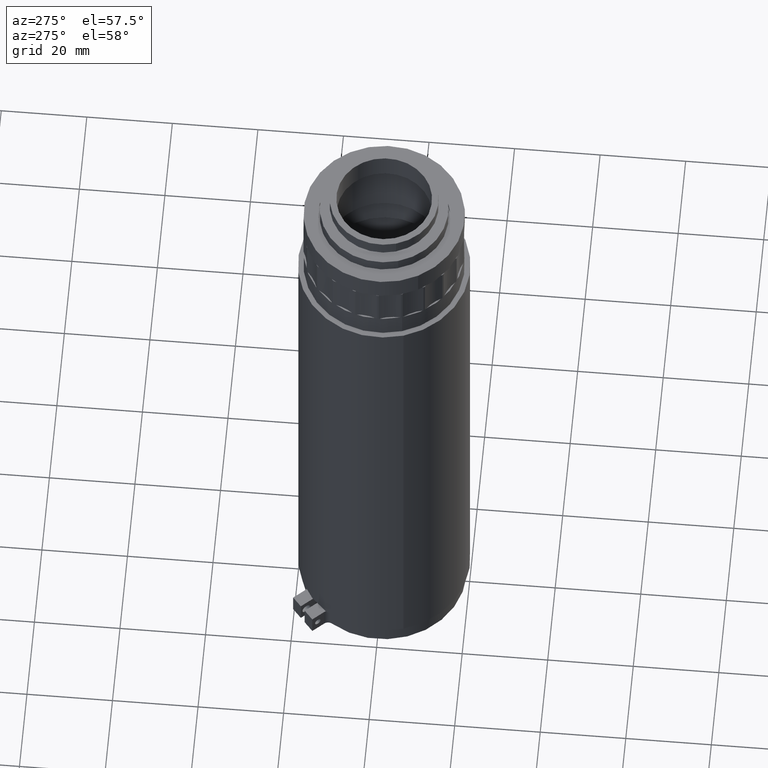
[diagram: clean part render]
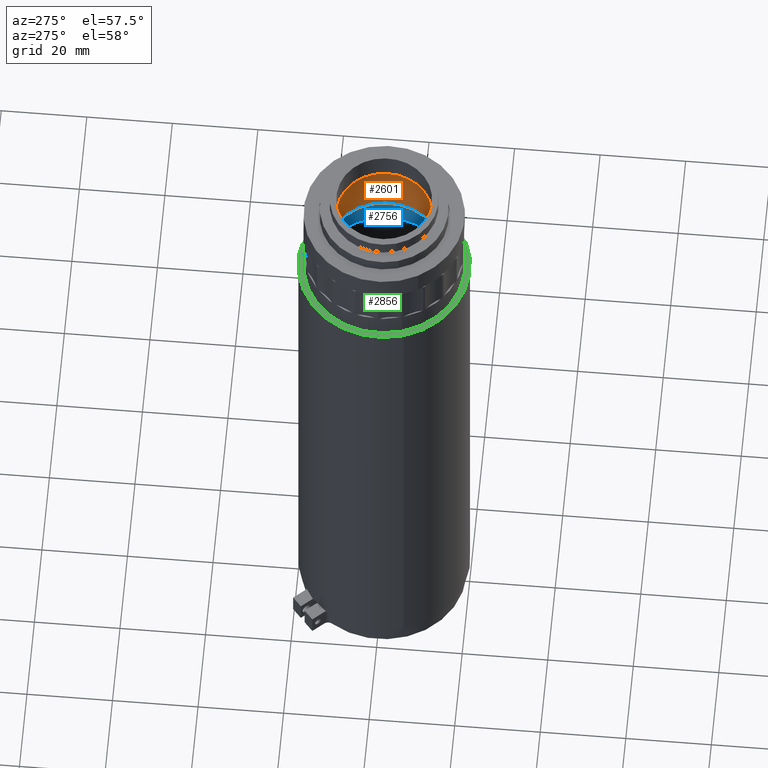
[diagram: same view with three faces highlighted in distinct colors, each labeled with its STEP entity id]
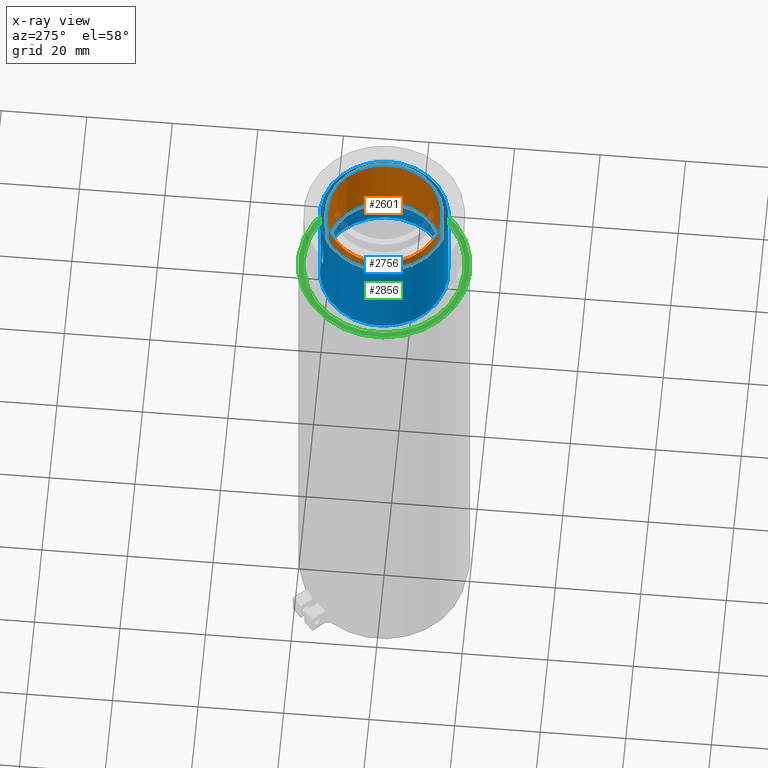
[diagram: x-ray of the same camera — body ghosted, the three highlighted faces saturated]
A machine part, auxiliary view with three faces highlighted in distinct colors.
The next image is the same camera in x-ray (body ghosted, the three faces saturated) — at least one of them is partly hidden behind the body in this view.
Their STEP definitions:

[orange] entity #2601 — the highlighted cylindrical surface (bore or boss wall) has radius 13.5 mm, axis along (-0, -0, -1).
#111 = DIRECTION ( 'NONE',  ( -0.9538784807491921258, -0.3001930111838268522, 0.000000000000000000 ) ) ;
#135 = EDGE_LOOP ( 'NONE', ( #188 ) ) ;
#141 = CIRCLE ( 'NONE', #3009, 13.50000000000000178 ) ;
#182 = CARTESIAN_POINT ( 'NONE',  ( -4.617328216885215220, 12.66830743998387732, 334.0175779698986389 ) ) ;
#188 = ORIENTED_EDGE ( 'NONE', *, *, #2972, .F. ) ;
#206 = CARTESIAN_POINT ( 'NONE',  ( -3.728165001072351270, 12.95886490819899173, 333.2967141837277723 ) ) ;
#326 = CARTESIAN_POINT ( 'NONE',  ( 3.806879631704331857, -12.96943754340228949, 332.8560086053175837 ) ) ;
#353 = CARTESIAN_POINT ( 'NONE',  ( 4.318867868283898126, -12.80835938454816691, 332.8553742682515235 ) ) ;
#375 = CARTESIAN_POINT ( 'NONE',  ( 4.553804113957438560, -12.72685174855670986, 334.7496313662290390 ) ) ;
#396 = CYLINDRICAL_SURFACE ( 'NONE', #720, 13.50000000000000178 ) ;
#398 = CARTESIAN_POINT ( 'NONE',  ( 3.937553606003119988, -12.93054685609240728, 334.8790489789077469 ) ) ;
#423 = CIRCLE ( 'NONE', #4826, 13.50000000000000178 ) ;
#516 = CARTESIAN_POINT ( 'NONE',  ( -4.351309066032870376, 12.76275659742168500, 334.4111985816682022 ) ) ;
#536 = CARTESIAN_POINT ( 'NONE',  ( -3.561496191275754342, 13.00537847015142745, 333.4696525701223777 ) ) ;
#537 = CARTESIAN_POINT ( 'NONE',  ( 0.01183030213290377566, -0.01324913266420750350, 344.6539564219371528 ) ) ;
#560 = CARTESIAN_POINT ( 'NONE',  ( 5.030463390938312074, -12.54573978376575383, 333.8539564219370277 ) ) ;
#632 = EDGE_LOOP ( 'NONE', ( #882 ) ) ;
#668 = CARTESIAN_POINT ( 'NONE',  ( -4.632603999458059896, 12.66268199756071411, 333.8539564219370845 ) ) ;
#704 = CARTESIAN_POINT ( 'NONE',  ( 3.075012782434137115, -13.16113539215002071, 333.7184827245309862 ) ) ;
#720 = AXIS2_PLACEMENT_3D ( 'NONE', #3467, #4236, #3062 ) ;
#735 = CARTESIAN_POINT ( 'NONE',  ( 3.569485251307495943, -13.03662460951496982, 332.9582811440278078 ) ) ;
#784 = CARTESIAN_POINT ( 'NONE',  ( 4.553498240636089989, -12.72696893807419727, 332.9579716130402858 ) ) ;
#882 = ORIENTED_EDGE ( 'NONE', *, *, #3643, .T. ) ;
#976 = CARTESIAN_POINT ( 'NONE',  ( -4.196707108164808631, 12.81503200699132528, 334.4788450090070455 ) ) ;
#1001 = CARTESIAN_POINT ( 'NONE',  ( -4.118132460278009610, 12.83976816314461900, 333.2289009338048800 ) ) ;
#1046 = VERTEX_POINT ( 'NONE', #668 ) ;
#1093 = CARTESIAN_POINT ( 'NONE',  ( 3.569801894400513209, -13.03654584043292708, 334.7499408926724982 ) ) ;
#1148 = CARTESIAN_POINT ( 'NONE',  ( 4.661301458374867757, -12.68768708409983148, 334.6732688906452609 ) ) ;
#1163 = VERTEX_POINT ( 'NONE', #2754 ) ;
#1321 = CARTESIAN_POINT ( 'NONE',  ( -3.673606730363610406, 12.97408950975072095, 334.3545063065188856 ) ) ;
#1419 = CARTESIAN_POINT ( 'NONE',  ( -12.86552918798119194, -4.065854783645871606, 328.1539564219370959 ) ) ;
#1467 = CARTESIAN_POINT ( 'NONE',  ( -12.86552918798119016, -4.065854783645870718, 344.6539564219371528 ) ) ;
#1502 = ORIENTED_EDGE ( 'NONE', *, *, #2350, .T. ) ;
#1561 = CARTESIAN_POINT ( 'NONE',  ( 3.808756645766784299, -12.96889536629462469, 334.8525385074775613 ) ) ;
#1696 = ORIENTED_EDGE ( 'NONE', *, *, #4854, .T. ) ;
#1705 = CARTESIAN_POINT ( 'NONE',  ( 0.01183030213290331770, -0.01324913266420818872, 328.1539564219370959 ) ) ;
#1776 = CARTESIAN_POINT ( 'NONE',  ( -3.884840583044122830, 12.91317883927217913, 333.2290678348023789 ) ) ;
#1851 = VERTEX_POINT ( 'NONE', #1419 ) ;
#1859 = B_SPLINE_CURVE_WITH_KNOTS ( 'NONE', 3,
 ( #2504, #4891, #182, #4812, #2843, #516, #976, #2536, #4412, #4108, #1321, #3708, #4435, #2480, #4511, #4049, #536, #206, #1776, #1001, #3057, #3081, #3816, #4614, #3848, #4637 ),
 .UNSPECIFIED., .T., .F.,
 ( 4, 2, 2, 2, 2, 2, 2, 2, 2, 2, 2, 2, 4 ),
 ( 0.000000000000000000, 0.0002442361452107170375, 0.0004884722904214340751, 0.0009769445808428681502, 0.001221180726053585188, 0.001465416871264302225, 0.001953889161685737168, 0.002198125306896454856, 0.002442361452107171677, 0.002930833742528725881, 0.003175069887739502116, 0.003419306032950277484, 0.003907778323371946180 ),
 .UNSPECIFIED. ) ;
#1896 = CARTESIAN_POINT ( 'NONE',  ( 4.838567278811211736, -12.62124538803659846, 334.4842407930610193 ) ) ;
#1920 = B_SPLINE_CURVE_WITH_KNOTS ( 'NONE', 3,
 ( #2371, #4214, #3469, #3088, #1896, #1148, #375, #4598, #1946, #398, #1561, #1093, #2723, #2643, #4239, #3490, #2668, #704, #4671, #2270, #3826, #4292, #735, #326, #3857, #3445, #353, #784, #1973, #3520, #3300, #2499, #4506, #560 ),
 .UNSPECIFIED., .T., .F.,
 ( 4, 2, 2, 2, 2, 2, 2, 2, 2, 2, 2, 2, 2, 2, 2, 2, 4 ),
 ( 0.000000000000000000, 0.0004006355939602346088, 0.0008012711879204692175, 0.001201906781880703826, 0.001602542375840938435, 0.002003177969801173044, 0.002403813563761407653, 0.002804449157721642261, 0.003205084751681876870, 0.003605720345642111479, 0.004006355939602346088, 0.004406991533562580263, 0.004807627127522815305, 0.005208262721483050348, 0.005608898315443284523, 0.006009533909403518698, 0.006410169503363753740 ),
 .UNSPECIFIED. ) ;
#1922 = FACE_OUTER_BOUND ( 'NONE', #135, .T. ) ;
#1946 = CARTESIAN_POINT ( 'NONE',  ( 4.192675292398174491, -12.85024329413389843, 334.8788633713473928 ) ) ;
#1973 = CARTESIAN_POINT ( 'NONE',  ( 4.659690494049882226, -12.68828712590319263, 333.0330582157678236 ) ) ;
#2270 = CARTESIAN_POINT ( 'NONE',  ( 3.201417832899234650, -13.13114497235157607, 333.3373382067687203 ) ) ;
#2350 = EDGE_CURVE ( 'NONE', #1851, #1851, #423, .T. ) ;
#2371 = CARTESIAN_POINT ( 'NONE',  ( 5.030463390938312074, -12.54573978376575383, 333.8539564219370277 ) ) ;
#2480 = CARTESIAN_POINT ( 'NONE',  ( -3.440255898521537237, 13.03792326154050940, 333.7713713993999249 ) ) ;
#2499 = CARTESIAN_POINT ( 'NONE',  ( 5.005580040463980751, -12.55578195664511831, 333.5852815793221566 ) ) ;
#2504 = CARTESIAN_POINT ( 'NONE',  ( -4.632603999458059896, 12.66268199756071233, 333.8539564219370277 ) ) ;
#2536 = CARTESIAN_POINT ( 'NONE',  ( -3.963419734595752253, 12.88845746679263371, 334.4790119101013488 ) ) ;
#2601 = ADVANCED_FACE ( 'NONE', ( #1922, #3039, #3412, #3443 ), #396, .F. ) ;
#2643 = CARTESIAN_POINT ( 'NONE',  ( 3.274859981929496122, -13.11331897258331836, 334.4836434904045745 ) ) ;
#2668 = CARTESIAN_POINT ( 'NONE',  ( 3.075012228375192613, -13.16113552123415431, 333.9894258273984065 ) ) ;
#2723 = CARTESIAN_POINT ( 'NONE',  ( 3.460595878982799078, -13.06565153597399132, 334.6748541138336464 ) ) ;
#2754 = CARTESIAN_POINT ( 'NONE',  ( 5.030463390938312074, -12.54573978376575027, 333.8539564219370845 ) ) ;
#2843 = CARTESIAN_POINT ( 'NONE',  ( -4.514576997653066748, 12.70543648522692415, 334.2382600117468314 ) ) ;
#2972 = EDGE_CURVE ( 'NONE', #3353, #3353, #141, .T. ) ;
#3009 = AXIS2_PLACEMENT_3D ( 'NONE', #537, #4512, #4535 ) ;
#3039 = FACE_BOUND ( 'NONE', #632, .T. ) ;
#3057 = CARTESIAN_POINT ( 'NONE',  ( -4.196046153214314955, 12.81443592021962097, 333.2450614042080019 ) ) ;
#3062 = DIRECTION ( 'NONE',  ( -0.9538784807491921258, -0.3001930111838268522, 0.000000000000000000 ) ) ;
#3081 = CARTESIAN_POINT ( 'NONE',  ( -4.339606987269471361, 12.76645045675662971, 333.3076019521445801 ) ) ;
#3088 = CARTESIAN_POINT ( 'NONE',  ( 4.909665578562405486, -12.59354600794787338, 334.3705734286558595 ) ) ;
#3300 = CARTESIAN_POINT ( 'NONE',  ( 4.909491113298487974, -12.59361417778484160, 333.3370019662631876 ) ) ;
#3353 = VERTEX_POINT ( 'NONE', #1467 ) ;
#3412 = FACE_OUTER_BOUND ( 'NONE', #4191, .T. ) ;
#3443 = FACE_BOUND ( 'NONE', #4991, .T. ) ;
#3445 = CARTESIAN_POINT ( 'NONE',  ( 4.191322351026794735, -12.85068384915839168, 332.8288638650888061 ) ) ;
#3467 = CARTESIAN_POINT ( 'NONE',  ( 0.01183030213290291698, -0.01324913266420879240, 313.6820463095775153 ) ) ;
#3469 = CARTESIAN_POINT ( 'NONE',  ( 5.005641917239412209, -12.55575707239207084, 334.1223577611976907 ) ) ;
#3490 = CARTESIAN_POINT ( 'NONE',  ( 3.101161726885779846, -13.15511724278570327, 334.1226295679818463 ) ) ;
#3520 = CARTESIAN_POINT ( 'NONE',  ( 4.839249736500669030, -12.62099334399506567, 333.2242683532816159 ) ) ;
#3643 = EDGE_CURVE ( 'NONE', #1046, #1046, #1859, .T. ) ;
#3708 = CARTESIAN_POINT ( 'NONE',  ( -3.504841991304952220, 13.02119218691712632, 334.1796377944784808 ) ) ;
#3816 = CARTESIAN_POINT ( 'NONE',  ( -4.404752910471795957, 12.74399209959479862, 333.3534063993938048 ) ) ;
#3826 = CARTESIAN_POINT ( 'NONE',  ( 3.275565321986183331, -13.11313436618642747, 333.2236710743180765 ) ) ;
#3848 = CARTESIAN_POINT ( 'NONE',  ( -4.632603999458057231, 12.66268199756071233, 333.6887862809578564 ) ) ;
#3857 = CARTESIAN_POINT ( 'NONE',  ( 3.936192540525948580, -12.93096042022951586, 332.8290494724046198 ) ) ;
#4049 = CARTESIAN_POINT ( 'NONE',  ( -3.516647371869430660, 13.01751565707463421, 333.5389733625381723 ) ) ;
#4108 = CARTESIAN_POINT ( 'NONE',  ( -3.739873110486010788, 12.95519138996778707, 334.4003108010645064 ) ) ;
#4191 = EDGE_LOOP ( 'NONE', ( #1502 ) ) ;
#4214 = CARTESIAN_POINT ( 'NONE',  ( 5.030463390938308521, -12.54573978376575027, 333.9894282006926005 ) ) ;
#4236 = DIRECTION ( 'NONE',  ( -2.775557561562895049E-17, -4.163336342344347504E-17, -1.000000000000000000 ) ) ;
#4239 = CARTESIAN_POINT ( 'NONE',  ( 3.201598458789858714, -13.13110128850783731, 334.3709096244730290 ) ) ;
#4292 = CARTESIAN_POINT ( 'NONE',  ( 3.458933005363976854, -13.06608186600784904, 333.0346434325539349 ) ) ;
#4346 = DIRECTION ( 'NONE',  ( -2.775557561562895049E-17, -4.163336342344347504E-17, -1.000000000000000000 ) ) ;
#4412 = CARTESIAN_POINT ( 'NONE',  ( -3.885040857439217454, 12.91231171594096239, 334.4628514213908943 ) ) ;
#4435 = CARTESIAN_POINT ( 'NONE',  ( -3.440255898521669131, 13.03792326154046499, 334.0191264670123132 ) ) ;
#4506 = CARTESIAN_POINT ( 'NONE',  ( 5.030463390938315626, -12.54573978376575560, 333.7184846431815686 ) ) ;
#4511 = CARTESIAN_POINT ( 'NONE',  ( -3.456000293926945854, 13.03378641792971671, 333.6903344071565130 ) ) ;
#4512 = DIRECTION ( 'NONE',  ( -2.775557561562895049E-17, -4.163336342344347504E-17, -1.000000000000000000 ) ) ;
#4535 = DIRECTION ( 'NONE',  ( -0.9538784807491921258, -0.3001930111838268522, 0.000000000000000000 ) ) ;
#4598 = CARTESIAN_POINT ( 'NONE',  ( 4.320717750801783552, -12.80772866630809403, 334.8519041671558512 ) ) ;
#4614 = CARTESIAN_POINT ( 'NONE',  ( -4.570076346069987139, 12.68595462169763977, 333.5282747161064094 ) ) ;
#4637 = CARTESIAN_POINT ( 'NONE',  ( -4.632603999458059896, 12.66268199756071233, 333.8539564219370277 ) ) ;
#4671 = CARTESIAN_POINT ( 'NONE',  ( 3.101097700527005063, -13.15513205782096229, 333.5855533421884616 ) ) ;
#4812 = CARTESIAN_POINT ( 'NONE',  ( -4.558293534698791838, 12.68970146219738560, 334.1689391571803185 ) ) ;
#4826 = AXIS2_PLACEMENT_3D ( 'NONE', #1705, #4346, #111 ) ;
#4854 = EDGE_CURVE ( 'NONE', #1163, #1163, #1920, .T. ) ;
#4891 = CARTESIAN_POINT ( 'NONE',  ( -4.632603999458060784, 12.66268199756071233, 333.9365414924265565 ) ) ;
#4991 = EDGE_LOOP ( 'NONE', ( #1696 ) ) ;

[blue] entity #2756 — the highlighted cylindrical surface (bore or boss wall) has radius 15 mm, axis along (0, -0, -1).
#38 = CARTESIAN_POINT ( 'NONE',  ( -4.957183744171856254, 14.14095377298906087, 337.5187951852429364 ) ) ;
#129 = CYLINDRICAL_SURFACE ( 'NONE', #473, 14.99999999999999822 ) ;
#173 = CARTESIAN_POINT ( 'NONE',  ( -4.393612171101315411, 14.32660321248561353, 329.5586619913779600 ) ) ;
#196 = CARTESIAN_POINT ( 'NONE',  ( -3.131348952363112836, 14.65373502135006767, 331.0586631449635888 ) ) ;
#263 = EDGE_CURVE ( 'NONE', #2826, #1450, #1123, .T. ) ;
#282 = CARTESIAN_POINT ( 'NONE',  ( -14.26731674590356214, -4.607371418863334789, 343.5586631449635320 ) ) ;
#330 = DIRECTION ( 'NONE',  ( 4.046155243032693411E-18, -1.257599212541799935E-17, -1.000000000000000000 ) ) ;
#395 = CARTESIAN_POINT ( 'NONE',  ( -3.861578524541199986, 14.47824362504935714, 337.3607463180925379 ) ) ;
#415 = VECTOR ( 'NONE', #3398, 1000.000000000000000 ) ;
#421 = EDGE_LOOP ( 'NONE', ( #1365, #584, #3862, #2958 ) ) ;
#426 = CARTESIAN_POINT ( 'NONE',  ( -3.317438419564574303, 14.61281079039304132, 336.8144314833252224 ) ) ;
#447 = CARTESIAN_POINT ( 'NONE',  ( -5.804492356200055880, 13.81329660187393138, 336.8097732985925177 ) ) ;
#473 = AXIS2_PLACEMENT_3D ( 'NONE', #2820, #4709, #3562 ) ;
#584 = ORIENTED_EDGE ( 'NONE', *, *, #1602, .T. ) ;
#592 = CARTESIAN_POINT ( 'NONE',  ( 0.01183030213290260819, -0.01324913266420877679, 319.5586631449635320 ) ) ;
#605 = CARTESIAN_POINT ( 'NONE',  ( -3.325469377686601558, 14.61088869020209202, 330.3075529913346031 ) ) ;
#804 = CARTESIAN_POINT ( 'NONE',  ( -4.770971867693955204, 14.20519283788849130, 337.5586642985492745 ) ) ;
#811 = CARTESIAN_POINT ( 'NONE',  ( 0.01183030213290251105, -0.01324913266420847495, 343.5586631449635320 ) ) ;
#856 = CARTESIAN_POINT ( 'NONE',  ( -5.987178361970407536, 13.73491056411024580, 336.0586631449635320 ) ) ;
#992 = CARTESIAN_POINT ( 'NONE',  ( -5.987178361970405760, 13.73491056411024580, 331.0586631449635888 ) ) ;
#1015 = CARTESIAN_POINT ( 'NONE',  ( -5.812137438578656834, 13.81017514821806635, 330.3028948066019552 ) ) ;
#1038 = CARTESIAN_POINT ( 'NONE',  ( -5.291614872643791045, 14.01814878641568640, 329.7565799718344692 ) ) ;
#1123 = LINE ( 'NONE', #4546, #2766 ) ;
#1191 = CARTESIAN_POINT ( 'NONE',  ( -3.426839885313059053, 14.58794117370256771, 336.9815184373029524 ) ) ;
#1214 = CARTESIAN_POINT ( 'NONE',  ( -3.944798388324710192, 14.45579854396141428, 337.4067741328349825 ) ) ;
#1240 = CIRCLE ( 'NONE', #4662, 14.99999999999999822 ) ;
#1260 = EDGE_CURVE ( 'NONE', #1450, #3897, #4048, .T. ) ;
#1267 = CARTESIAN_POINT ( 'NONE',  ( -5.645078001787038779, 13.87934546935013991, 337.0498331993624106 ) ) ;
#1268 = CARTESIAN_POINT ( 'NONE',  ( -3.131348952363113725, 14.65373502135006767, 336.0586631449635320 ) ) ;
#1336 = CARTESIAN_POINT ( 'NONE',  ( -5.987178361970406648, 13.73491056411024758, 330.8604506448295410 ) ) ;
#1365 = ORIENTED_EDGE ( 'NONE', *, *, #1260, .T. ) ;
#1384 = CARTESIAN_POINT ( 'NONE',  ( -4.769100444310688580, 14.20476375075311992, 329.5683897924915868 ) ) ;
#1398 = DIRECTION ( 'NONE',  ( -4.046155243032693411E-18, 1.257599212541799935E-17, 1.000000000000000000 ) ) ;
#1413 = CARTESIAN_POINT ( 'NONE',  ( -5.950493536516542115, 13.75106536306012828, 330.6635150582983442 ) ) ;
#1435 = CARTESIAN_POINT ( 'NONE',  ( -3.493490154675807702, 14.57158973617335462, 330.0674930905647102 ) ) ;
#1440 = VERTEX_POINT ( 'NONE', #4552 ) ;
#1450 = VERTEX_POINT ( 'NONE', #3362 ) ;
#1522 = VERTEX_POINT ( 'NONE', #282 ) ;
#1600 = ORIENTED_EDGE ( 'NONE', *, *, #3569, .F. ) ;
#1602 = EDGE_CURVE ( 'NONE', #3897, #2466, #3319, .T. ) ;
#1603 = CARTESIAN_POINT ( 'NONE',  ( -3.170571455626963076, 14.64546766473458206, 336.4538112316288334 ) ) ;
#1694 = CARTESIAN_POINT ( 'NONE',  ( -5.987178361970405760, 13.73491056411024580, 331.0586631449635888 ) ) ;
#1717 = CARTESIAN_POINT ( 'NONE',  ( -3.131348952363113280, 14.65373502135007122, 330.9595554255890875 ) ) ;
#1780 = CARTESIAN_POINT ( 'NONE',  ( -5.987178361970407536, 13.73491056411024580, 336.0586631449635320 ) ) ;
#1821 = CARTESIAN_POINT ( 'NONE',  ( -3.178323861587522892, 14.64360191892800600, 330.6704304605638072 ) ) ;
#1997 = CARTESIAN_POINT ( 'NONE',  ( -3.628760327495298643, 14.53841409263947071, 337.1887638554042610 ) ) ;
#2019 = CARTESIAN_POINT ( 'NONE',  ( -5.703766078755915458, 13.85523795951288939, 336.9727193932956766 ) ) ;
#2043 = B_SPLINE_CURVE_WITH_KNOTS ( 'NONE', 3,
 ( #856, #3212, #2436, #2344, #4687, #3539, #447, #2019, #1267, #2819, #3930, #38, #804, #4312, #3158, #3589, #3188, #1214, #395, #4365, #1997, #1191, #426, #1603, #4668, #2369 ),
 .UNSPECIFIED., .F., .F.,
 ( 4, 2, 2, 2, 2, 2, 2, 2, 2, 2, 2, 2, 4 ),
 ( 0.000000000000000000, 0.0002930887191732768084, 0.0005861774383465536168, 0.0008792661575198304795, 0.001172354876693107234, 0.001758532315039660959, 0.002344709753386214467, 0.002637798472559489162, 0.002930887191732763856, 0.003223975910906038550, 0.003517064630079313244, 0.004103242068425745973, 0.004689419506772179135 ),
 .UNSPECIFIED. ) ;
#2071 = FACE_BOUND ( 'NONE', #421, .T. ) ;
#2128 = CARTESIAN_POINT ( 'NONE',  ( -3.206634940915761067, 14.63744738851243454, 330.5751889036078524 ) ) ;
#2163 = EDGE_CURVE ( 'NONE', #1522, #1522, #1240, .T. ) ;
#2204 = CARTESIAN_POINT ( 'NONE',  ( -3.431755073038603499, 14.58622674762056981, 330.1446068966313874 ) ) ;
#2344 = CARTESIAN_POINT ( 'NONE',  ( -5.943107608479625270, 13.75407017131113463, 336.4468958293631999 ) ) ;
#2369 = CARTESIAN_POINT ( 'NONE',  ( -3.131348952363113725, 14.65373502135006767, 336.0586631449635320 ) ) ;
#2436 = CARTESIAN_POINT ( 'NONE',  ( -5.978222227670642930, 13.73882842045686736, 336.2552108918058025 ) ) ;
#2466 = VERTEX_POINT ( 'NONE', #1780 ) ;
#2494 = CARTESIAN_POINT ( 'NONE',  ( -4.676644356322320562, 14.23554125611764043, 329.5586637217944599 ) ) ;
#2646 = DIRECTION ( 'NONE',  ( -0.9519431365357643449, -0.3062748190799418069, 0.000000000000000000 ) ) ;
#2756 = ADVANCED_FACE ( 'NONE', ( #4436, #2071, #3633 ), #129, .F. ) ;
#2766 = VECTOR ( 'NONE', #5014, 1000.000000000000000 ) ;
#2819 = CARTESIAN_POINT ( 'NONE',  ( -5.452292416062170410, 13.95680986005344160, 337.2572205988628866 ) ) ;
#2820 = CARTESIAN_POINT ( 'NONE',  ( 0.01183030213290322923, -0.01324913266421071101, 165.9109228090400165 ) ) ;
#2826 = VERTEX_POINT ( 'NONE', #1268 ) ;
#2939 = CARTESIAN_POINT ( 'NONE',  ( -5.443954943095010712, 13.95961977974512180, 329.8653112396046367 ) ) ;
#2958 = ORIENTED_EDGE ( 'NONE', *, *, #263, .T. ) ;
#3158 = CARTESIAN_POINT ( 'NONE',  ( -4.394882293455836475, 14.32516337553174424, 337.5489364974354771 ) ) ;
#3188 = CARTESIAN_POINT ( 'NONE',  ( -4.119744053177125664, 14.40681829468029562, 337.4820048012256279 ) ) ;
#3212 = CARTESIAN_POINT ( 'NONE',  ( -5.987178361970406648, 13.73491056411024047, 336.1577708643379765 ) ) ;
#3271 = CARTESIAN_POINT ( 'NONE',  ( -5.515840537276324618, 13.93127157786352832, 329.9285624345228030 ) ) ;
#3281 = DIRECTION ( 'NONE',  ( -0.9519431365357643449, -0.3062748190799418069, 0.000000000000000000 ) ) ;
#3295 = CARTESIAN_POINT ( 'NONE',  ( -3.857341909817249004, 14.48026896616364212, 329.7483430875540762 ) ) ;
#3316 = CARTESIAN_POINT ( 'NONE',  ( -3.695277968757623377, 14.52210547626782855, 329.8601056910641205 ) ) ;
#3319 = LINE ( 'NONE', #4882, #415 ) ;
#3362 = CARTESIAN_POINT ( 'NONE',  ( -3.131348952363112836, 14.65373502135006767, 331.0586631449635888 ) ) ;
#3398 = DIRECTION ( 'NONE',  ( -4.046155243032693411E-18, 1.257599212541799935E-17, 1.000000000000000000 ) ) ;
#3439 = EDGE_CURVE ( 'NONE', #2466, #2826, #2043, .T. ) ;
#3539 = CARTESIAN_POINT ( 'NONE',  ( -5.847041964568406414, 13.79526428619474920, 336.7236779495544283 ) ) ;
#3562 = DIRECTION ( 'NONE',  ( -0.9519431365357643449, -0.3062748190799418069, 0.000000000000000000 ) ) ;
#3569 = EDGE_CURVE ( 'NONE', #1440, #1440, #3731, .T. ) ;
#3589 = CARTESIAN_POINT ( 'NONE',  ( -4.211265659714810816, 14.38031365256503946, 337.5108405655561228 ) ) ;
#3633 = FACE_OUTER_BOUND ( 'NONE', #5009, .T. ) ;
#3642 = CARTESIAN_POINT ( 'NONE',  ( -5.210919759502286475, 14.04844113046943122, 329.7105521570920246 ) ) ;
#3731 = CIRCLE ( 'NONE', #4232, 14.99999999999999822 ) ;
#3751 = CARTESIAN_POINT ( 'NONE',  ( -4.204876634126077484, 14.38299840273483099, 329.5985311046841844 ) ) ;
#3862 = ORIENTED_EDGE ( 'NONE', *, *, #3439, .T. ) ;
#3897 = VERTEX_POINT ( 'NONE', #1694 ) ;
#3930 = CARTESIAN_POINT ( 'NONE',  ( -5.296237663875103863, 14.01732373358103345, 337.3689832023731583 ) ) ;
#4048 = B_SPLINE_CURVE_WITH_KNOTS ( 'NONE', 3,
 ( #196, #1717, #4878, #1821, #2128, #4832, #605, #2204, #1435, #3316, #3295, #3751, #173, #2494, #1384, #4932, #4547, #3642, #1038, #2939, #3271, #4853, #1015, #1413, #1336, #992 ),
 .UNSPECIFIED., .F., .F.,
 ( 4, 2, 2, 2, 2, 2, 2, 2, 2, 2, 2, 2, 4 ),
 ( 0.000000000000000000, 0.0002930887191732924751, 0.0005861774383465849503, 0.0008792661575198775338, 0.001172354876693169901, 0.001758532315039636239, 0.002344709753386103011, 0.002637798472559335639, 0.002930887191732567832, 0.003223975910905800893, 0.003517064630079033086, 0.004103242068425612399, 0.004689419506772191278 ),
 .UNSPECIFIED. ) ;
#4232 = AXIS2_PLACEMENT_3D ( 'NONE', #592, #1398, #3281 ) ;
#4312 = CARTESIAN_POINT ( 'NONE',  ( -4.487939576476349224, 14.29625446480483397, 337.5586625681325472 ) ) ;
#4365 = CARTESIAN_POINT ( 'NONE',  ( -3.703689759762986977, 14.51952654698732026, 337.2520150503223704 ) ) ;
#4436 = FACE_OUTER_BOUND ( 'NONE', #4790, .T. ) ;
#4546 = CARTESIAN_POINT ( 'NONE',  ( -3.131348952363113725, 14.65373502135006945, 329.5586631449635888 ) ) ;
#4547 = CARTESIAN_POINT ( 'NONE',  ( -5.040234401715291135, 14.11066298440692890, 329.6353214887014360 ) ) ;
#4552 = CARTESIAN_POINT ( 'NONE',  ( -14.26731674590356214, -4.607371418863334789, 319.5586631449635320 ) ) ;
#4553 = ORIENTED_EDGE ( 'NONE', *, *, #2163, .F. ) ;
#4662 = AXIS2_PLACEMENT_3D ( 'NONE', #811, #330, #2646 ) ;
#4668 = CARTESIAN_POINT ( 'NONE',  ( -3.131348952363114169, 14.65373502135007122, 336.2568756450975798 ) ) ;
#4687 = CARTESIAN_POINT ( 'NONE',  ( -5.916519145967505722, 13.76557882538568656, 336.5421373863192684 ) ) ;
#4709 = DIRECTION ( 'NONE',  ( 4.046155243032693411E-18, -1.257599212541799935E-17, -1.000000000000000000 ) ) ;
#4790 = EDGE_LOOP ( 'NONE', ( #4553 ) ) ;
#4832 = CARTESIAN_POINT ( 'NONE',  ( -3.280387571476482300, 14.62105059602170520, 330.3936483403728062 ) ) ;
#4853 = CARTESIAN_POINT ( 'NONE',  ( -5.708758838487703713, 13.85376463761028454, 330.1358078526243958 ) ) ;
#4878 = CARTESIAN_POINT ( 'NONE',  ( -3.140909390186466421, 14.65169542124858282, 330.8621153981213183 ) ) ;
#4882 = CARTESIAN_POINT ( 'NONE',  ( -5.987178361970405760, 13.73491056411024580, 329.5586631449635888 ) ) ;
#4932 = CARTESIAN_POINT ( 'NONE',  ( -4.950427843100540848, 14.14249822504796406, 329.6064857243709412 ) ) ;
#5009 = EDGE_LOOP ( 'NONE', ( #1600 ) ) ;
#5014 = DIRECTION ( 'NONE',  ( 4.046155243032693411E-18, -1.257599212541799935E-17, -1.000000000000000000 ) ) ;

[green] entity #2856 — the highlighted planar face has unit normal (0, -0, -1).
#158 = EDGE_CURVE ( 'NONE', #3812, #3812, #2597, .T. ) ;
#659 = DIRECTION ( 'NONE',  ( -4.046155243032693411E-18, 1.257599212541799935E-17, 1.000000000000000000 ) ) ;
#833 = FACE_BOUND ( 'NONE', #4471, .T. ) ;
#1289 = DIRECTION ( 'NONE',  ( 4.046155243032693411E-18, -1.257599212541799935E-17, -1.000000000000000000 ) ) ;
#1411 = DIRECTION ( 'NONE',  ( -0.9519431365357644559, -0.3062748190799418069, 0.000000000000000000 ) ) ;
#1416 = ORIENTED_EDGE ( 'NONE', *, *, #4135, .F. ) ;
#1604 = PLANE ( 'NONE',  #2196 ) ;
#1625 = CIRCLE ( 'NONE', #3417, 20.10000000000000142 ) ;
#2196 = AXIS2_PLACEMENT_3D ( 'NONE', #4786, #1289, #3954 ) ;
#2597 = CIRCLE ( 'NONE', #3330, 18.80000000000000071 ) ;
#2628 = DIRECTION ( 'NONE',  ( -0.9519431365357644559, -0.3062748190799417514, 0.000000000000000000 ) ) ;
#2681 = CARTESIAN_POINT ( 'NONE',  ( -17.88470066473946929, -5.771215731367113300, 322.5586631449635320 ) ) ;
#2709 = EDGE_LOOP ( 'NONE', ( #1416 ) ) ;
#2856 = ADVANCED_FACE ( 'NONE', ( #833, #3213 ), #1604, .F. ) ;
#3129 = CARTESIAN_POINT ( 'NONE',  ( -19.12222674223596286, -6.169372996171039070, 322.5586631449635320 ) ) ;
#3213 = FACE_OUTER_BOUND ( 'NONE', #2709, .T. ) ;
#3330 = AXIS2_PLACEMENT_3D ( 'NONE', #4170, #659, #2628 ) ;
#3417 = AXIS2_PLACEMENT_3D ( 'NONE', #3698, #4876, #1411 ) ;
#3480 = VERTEX_POINT ( 'NONE', #3129 ) ;
#3698 = CARTESIAN_POINT ( 'NONE',  ( 0.01183030213290259605, -0.01324913266420874036, 322.5586631449635320 ) ) ;
#3812 = VERTEX_POINT ( 'NONE', #2681 ) ;
#3954 = DIRECTION ( 'NONE',  ( -0.9519431365357643449, -0.3062748190799417514, 0.000000000000000000 ) ) ;
#4135 = EDGE_CURVE ( 'NONE', #3480, #3480, #1625, .T. ) ;
#4170 = CARTESIAN_POINT ( 'NONE',  ( 0.01183030213290259605, -0.01324913266420874036, 322.5586631449635320 ) ) ;
#4471 = EDGE_LOOP ( 'NONE', ( #4567 ) ) ;
#4567 = ORIENTED_EDGE ( 'NONE', *, *, #158, .F. ) ;
#4786 = CARTESIAN_POINT ( 'NONE',  ( -5.746136296570002244, 17.88328183420816231, 322.5586631449635320 ) ) ;
#4876 = DIRECTION ( 'NONE',  ( 4.046155243032693411E-18, -1.257599212541799935E-17, -1.000000000000000000 ) ) ;